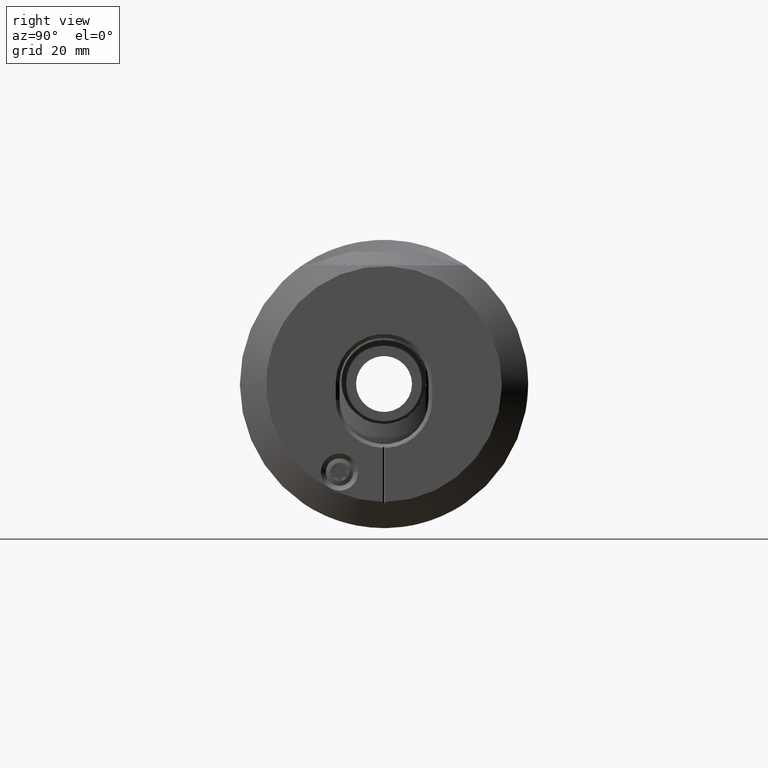
[diagram: clean part render]
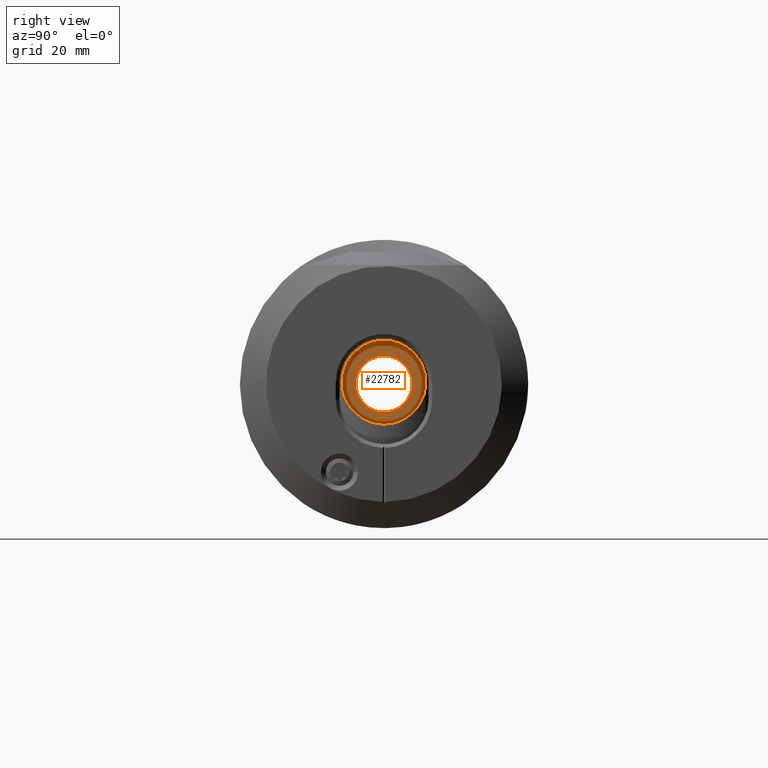
[diagram: same view with one face highlighted and labeled with its STEP entity id]
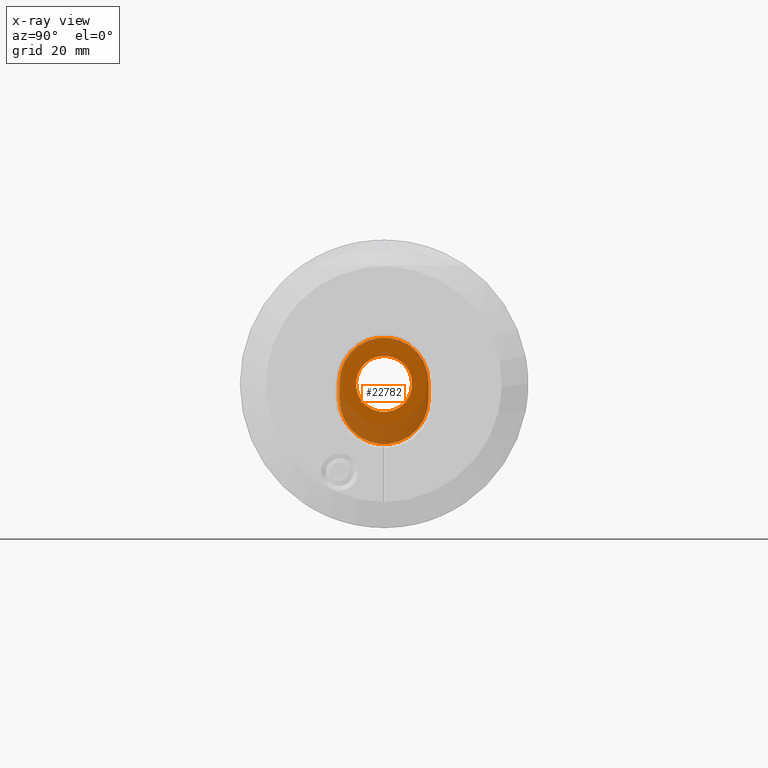
[diagram: x-ray of the same camera — body ghosted, the highlighted face saturated]
A machine part, right view. The second image highlights one B-rep face of the part: STEP entity #22782.
The next image is the same camera in x-ray: the body ghosted, the highlighted face saturated — about 41% of this face is hidden behind the body in this view.
In plain terms, the highlighted planar face has unit normal (-1, 0, 0).
Its self-contained STEP definition (entity closure, byte-faithful):
#1850 = CARTESIAN_POINT ( 'NONE',  ( 4.999999999999997300, -8.499999999999998200, -3.000000000000000400 ) ) ;
#2023 = LINE ( 'NONE', #1850, #24248 ) ;
#2886 = EDGE_LOOP ( 'NONE', ( #15345, #19317, #21479, #23197 ) ) ;
#2912 = VERTEX_POINT ( 'NONE', #23787 ) ;
#3008 = DIRECTION ( 'NONE',  ( -1.000000000000000000, -0.0000000000000000000, 0.0000000000000000000 ) ) ;
#3063 = CIRCLE ( 'NONE', #19748, 8.500000000000000000 ) ;
#3374 = DIRECTION ( 'NONE',  ( 0.0000000000000000000, 0.0000000000000000000, 1.000000000000000000 ) ) ;
#4256 = DIRECTION ( 'NONE',  ( 0.0000000000000000000, 0.0000000000000000000, 1.000000000000000000 ) ) ;
#5539 = DIRECTION ( 'NONE',  ( -0.0000000000000000000, -0.0000000000000000000, 1.000000000000000000 ) ) ;
#5787 = EDGE_CURVE ( 'NONE', #2912, #25960, #21272, .T. ) ;
#6044 = ORIENTED_EDGE ( 'NONE', *, *, #14709, .T. ) ;
#6523 = CARTESIAN_POINT ( 'NONE',  ( 5.000000000000004400, -8.474369612489455500E-015, 5.349999999999999600 ) ) ;
#7638 = CARTESIAN_POINT ( 'NONE',  ( 4.999999999999997300, 7.347880794884118400E-015, 0.3499999999999999800 ) ) ;
#8357 = CIRCLE ( 'NONE', #25903, 8.500000000000000000 ) ;
#10376 = DIRECTION ( 'NONE',  ( 0.0000000000000000000, 0.0000000000000000000, 1.000000000000000000 ) ) ;
#10563 = CARTESIAN_POINT ( 'NONE',  ( 4.999999999999997300, 7.347880794884118400E-015, 0.3499999999999999800 ) ) ;
#10797 = CARTESIAN_POINT ( 'NONE',  ( 4.999999999999997300, 7.347880794884118400E-015, -2.999999999999999600 ) ) ;
#10960 = CARTESIAN_POINT ( 'NONE',  ( 4.999999999999997300, -8.499999999999996400, 0.3499999999999989800 ) ) ;
#11536 = VERTEX_POINT ( 'NONE', #15549 ) ;
#13354 = CARTESIAN_POINT ( 'NONE',  ( 4.999999999999997300, 8.500000000000003600, 0.3499999999999999800 ) ) ;
#13959 = FACE_OUTER_BOUND ( 'NONE', #2886, .T. ) ;
#14003 = CIRCLE ( 'NONE', #21534, 5.349999999999999600 ) ;
#14618 = VERTEX_POINT ( 'NONE', #10960 ) ;
#14709 = EDGE_CURVE ( 'NONE', #25413, #25413, #14003, .T. ) ;
#14965 = DIRECTION ( 'NONE',  ( -0.0000000000000000000, -5.178279032766588600E-016, -1.000000000000000000 ) ) ;
#15014 = DIRECTION ( 'NONE',  ( 1.000000000000000000, 0.0000000000000000000, -0.0000000000000000000 ) ) ;
#15345 = ORIENTED_EDGE ( 'NONE', *, *, #19325, .T. ) ;
#15549 = CARTESIAN_POINT ( 'NONE',  ( 4.999999999999997300, -8.499999999999992900, -3.000000000000001300 ) ) ;
#16267 = VECTOR ( 'NONE', #5539, 1000.000000000000000 ) ;
#16831 = EDGE_CURVE ( 'NONE', #11536, #2912, #3063, .T. ) ;
#16934 = DIRECTION ( 'NONE',  ( -1.000000000000000000, -0.0000000000000000000, 0.0000000000000000000 ) ) ;
#18037 = DIRECTION ( 'NONE',  ( 0.0000000000000000000, 0.0000000000000000000, 1.000000000000000000 ) ) ;
#18966 = PLANE ( 'NONE',  #20098 ) ;
#19317 = ORIENTED_EDGE ( 'NONE', *, *, #20678, .T. ) ;
#19325 = EDGE_CURVE ( 'NONE', #25960, #14618, #8357, .T. ) ;
#19748 = AXIS2_PLACEMENT_3D ( 'NONE', #10797, #15014, #4256 ) ;
#20098 = AXIS2_PLACEMENT_3D ( 'NONE', #10563, #16934, #10376 ) ;
#20678 = EDGE_CURVE ( 'NONE', #14618, #11536, #2023, .T. ) ;
#21272 = LINE ( 'NONE', #22562, #16267 ) ;
#21479 = ORIENTED_EDGE ( 'NONE', *, *, #16831, .T. ) ;
#21534 = AXIS2_PLACEMENT_3D ( 'NONE', #24615, #3008, #18037 ) ;
#22562 = CARTESIAN_POINT ( 'NONE',  ( 4.999999999999997300, 8.500000000000003600, 0.3499999999999999800 ) ) ;
#22678 = FACE_BOUND ( 'NONE', #23129, .T. ) ;
#22782 = ADVANCED_FACE ( 'NONE', ( #22678, #13959 ), #18966, .F. ) ;
#23129 = EDGE_LOOP ( 'NONE', ( #6044 ) ) ;
#23197 = ORIENTED_EDGE ( 'NONE', *, *, #5787, .T. ) ;
#23787 = CARTESIAN_POINT ( 'NONE',  ( 4.999999999999997300, 8.500000000000003600, -2.999999999999999600 ) ) ;
#24248 = VECTOR ( 'NONE', #14965, 1000.000000000000000 ) ;
#24615 = CARTESIAN_POINT ( 'NONE',  ( 5.000000000000004400, -8.474369612489455500E-015, 0.0000000000000000000 ) ) ;
#25413 = VERTEX_POINT ( 'NONE', #6523 ) ;
#25903 = AXIS2_PLACEMENT_3D ( 'NONE', #7638, #27138, #3374 ) ;
#25960 = VERTEX_POINT ( 'NONE', #13354 ) ;
#27138 = DIRECTION ( 'NONE',  ( 1.000000000000000000, 0.0000000000000000000, -0.0000000000000000000 ) ) ;